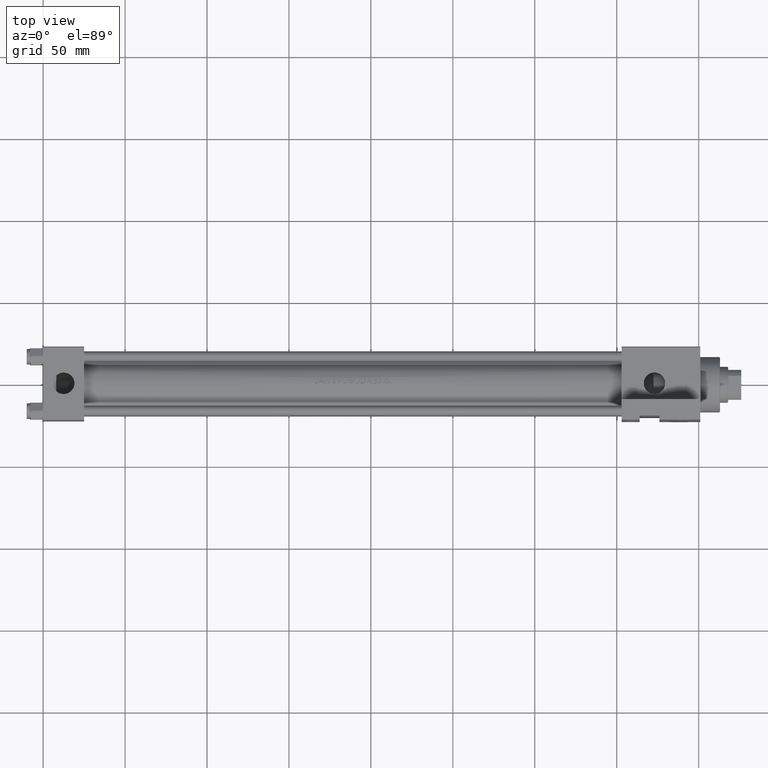
[diagram: clean part render]
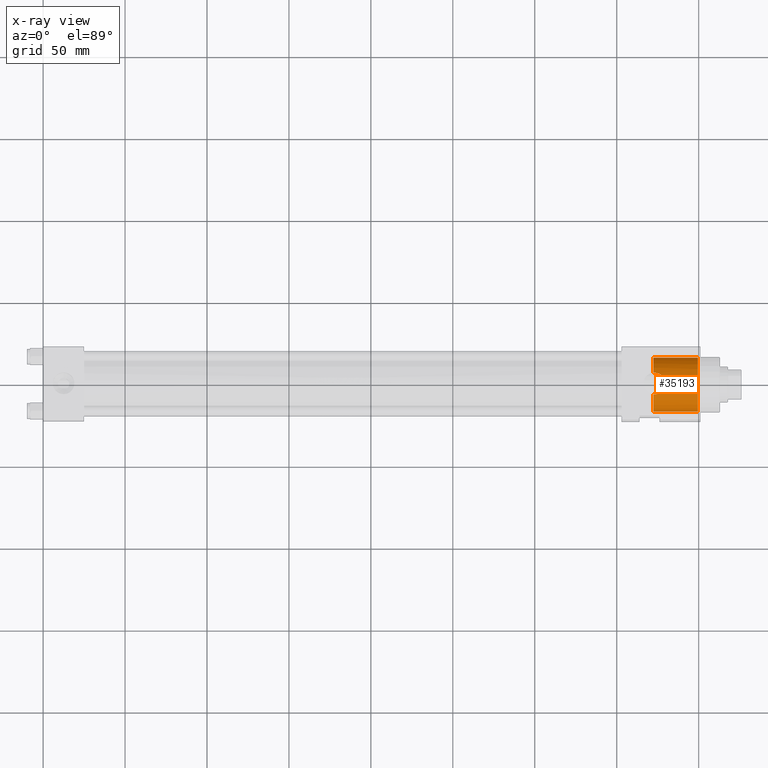
[diagram: x-ray — body ghosted, one internal face saturated and labeled with its STEP entity id]
A machine part, top view, then the same camera in x-ray: the body is ghosted and one INTERNAL B-rep face — a face not visible from any outside direction — is saturated and labeled: STEP entity #35193.
In plain terms, the highlighted cylindrical surface (edge-blend (fillet) strip) has radius 16.5 mm, axis along (1, 0, 0).
Its self-contained STEP definition (entity closure, byte-faithful):
#821 = VERTEX_POINT ( 'NONE', #12670 ) ;
#1004 = CARTESIAN_POINT ( 'NONE',  ( 377.3574914770862279, -15.89197804239858947, -4.948973207531823348 ) ) ;
#1238 = CARTESIAN_POINT ( 'NONE',  ( 379.5709677562896331, -16.50116693238018328, -0.4077177105366009413 ) ) ;
#1376 = ORIENTED_EDGE ( 'NONE', *, *, #14802, .F. ) ;
#1467 = CARTESIAN_POINT ( 'NONE',  ( 375.1384851323426801, -15.47127985552786811, -6.237636073092440725 ) ) ;
#1951 = CARTESIAN_POINT ( 'NONE',  ( 377.3341328556404619, -15.57266778701109189, 4.955512184649332852 ) ) ;
#2435 = CARTESIAN_POINT ( 'NONE',  ( 377.4913386763624317, -15.62185234982736226, 4.813414449261110839 ) ) ;
#2674 = CARTESIAN_POINT ( 'NONE',  ( 379.2284342886651416, -16.28834046731282825, 2.164775913349327841 ) ) ;
#3129 = EDGE_LOOP ( 'NONE', ( #37384, #36863, #31861, #12740, #1376, #19704, #32775, #3499 ) ) ;
#3450 = LINE ( 'NONE', #46906, #6925 ) ;
#3499 = ORIENTED_EDGE ( 'NONE', *, *, #4245, .T. ) ;
#3583 = EDGE_CURVE ( 'NONE', #30348, #8002, #22183, .T. ) ;
#3588 = VERTEX_POINT ( 'NONE', #38869 ) ;
#4245 = EDGE_CURVE ( 'NONE', #821, #8002, #21356, .T. ) ;
#4383 = CARTESIAN_POINT ( 'NONE',  ( 373.8656063113635355, -15.35602623177227777, -6.537463815344770168 ) ) ;
#4618 = CARTESIAN_POINT ( 'NONE',  ( 378.7127167590448380, -16.26592437390081614, -3.293073257702346712 ) ) ;
#4776 = EDGE_CURVE ( 'NONE', #44229, #821, #12711, .T. ) ;
#4847 = DIRECTION ( 'NONE',  ( 0.000000000000000000, 0.000000000000000000, -1.000000000000000000 ) ) ;
#5093 = CARTESIAN_POINT ( 'NONE',  ( 379.5778417032764764, -16.47736198929498386, 0.4683372378626164401 ) ) ;
#5328 = CARTESIAN_POINT ( 'NONE',  ( 376.3079685215799941, -15.66216623791877716, -5.692129803036766411 ) ) ;
#6364 = DIRECTION ( 'NONE',  ( 1.000000000000000000, -0.000000000000000000, -0.000000000000000000 ) ) ;
#6493 = B_SPLINE_CURVE_WITH_KNOTS ( 'NONE', 3,
 ( #39730, #18223, #46965, #6887 ),
 .UNSPECIFIED., .F., .F.,
 ( 4, 4 ),
 ( 0.000000000000000000, 0.0006965685122027478289 ),
 .UNSPECIFIED. ) ;
#6887 = CARTESIAN_POINT ( 'NONE',  ( 373.0000000000000568, -15.33895693976615071, -6.579999999999984972 ) ) ;
#6925 = VECTOR ( 'NONE', #6364, 1000.000000000000000 ) ;
#8002 = VERTEX_POINT ( 'NONE', #14274 ) ;
#8834 = CARTESIAN_POINT ( 'NONE',  ( 372.7674089415833691, -14.90381159301204761, 6.579999999999984972 ) ) ;
#8990 = LINE ( 'NONE', #12611, #19278 ) ;
#9200 = DIRECTION ( 'NONE',  ( 0.000000000000000000, 0.000000000000000000, 1.000000000000000000 ) ) ;
#9919 = CARTESIAN_POINT ( 'NONE',  ( 378.2113291612782859, -15.86733303061777356, 4.040163306179455738 ) ) ;
#10157 = CARTESIAN_POINT ( 'NONE',  ( 378.6923054650132485, -16.05392064770339289, 3.328442527785250515 ) ) ;
#10316 = CIRCLE ( 'NONE', #40352, 16.50000000000000000 ) ;
#11591 = EDGE_CURVE ( 'NONE', #46511, #44229, #6493, .T. ) ;
#11874 = CARTESIAN_POINT ( 'NONE',  ( 379.1646761068264482, -16.40157007731482963, -2.310968459578441880 ) ) ;
#12611 = CARTESIAN_POINT ( 'NONE',  ( 372.3000000000000114, 0.000000000000000000, -16.99999999999999645 ) ) ;
#12670 = CARTESIAN_POINT ( 'NONE',  ( 373.0000000000000568, -14.90381159301204939, 6.579999999999992077 ) ) ;
#12711 = B_SPLINE_CURVE_WITH_KNOTS ( 'NONE', 3,
 ( #37698, #15727, #4383, #30222, #1467, #15486, #45630, #5328, #37938, #31173, #1004, #22728, #41076, #33849, #26837, #4618, #38174, #11874, #19577, #26607, #41309, #19342, #23446, #1238, #30697, #5093, #46830, #28263, #2674, #45865, #10157, #9919, #23914, #2435, #1951, #31895, #31412, #42495, #17389, #28028, #46590, #39120, #24156, #13772 ),
 .UNSPECIFIED., .F., .F.,
 ( 4, 2, 2, 2, 2, 2, 2, 2, 2, 2, 2, 2, 2, 2, 2, 2, 2, 2, 2, 2, 2, 4 ),
 ( 0.0006965685122027478289, 0.001996785190668206970, 0.003297001869133666004, 0.003947110208366471848, 0.004597218547599277692, 0.005897435226064888514, 0.006547543565297690889, 0.007197651904530492396, 0.008497868582996188219, 0.009147976922229036564, 0.009798085261461884909, 0.01044819360069473325, 0.01109830193992758160, 0.01239851861839328002, 0.01369873529685897498, 0.01499895197532467341, 0.01629916865379036836, 0.01694927699302315946, 0.01759938533225594709, 0.01889960201072153276, 0.02019981868918711149, 0.02150003536765269369 ),
 .UNSPECIFIED. ) ;
#12740 = ORIENTED_EDGE ( 'NONE', *, *, #22101, .F. ) ;
#12945 = CARTESIAN_POINT ( 'NONE',  ( 373.0000000000000568, -15.33895693976615071, -6.579999999999984972 ) ) ;
#13772 = CARTESIAN_POINT ( 'NONE',  ( 373.0000000000000568, -14.90381159301204939, 6.579999999999992077 ) ) ;
#14274 = CARTESIAN_POINT ( 'NONE',  ( 372.3000000000000114, -14.92149255237201189, 6.542660009506819918 ) ) ;
#14644 = DIRECTION ( 'NONE',  ( 0.000000000000000000, 0.000000000000000000, -1.000000000000000000 ) ) ;
#14767 = CIRCLE ( 'NONE', #31757, 16.50000000000000000 ) ;
#14802 = EDGE_CURVE ( 'NONE', #46511, #39486, #14767, .T. ) ;
#15486 = CARTESIAN_POINT ( 'NONE',  ( 375.7335635805853826, -15.56042039305879854, -5.989176551187647135 ) ) ;
#15727 = CARTESIAN_POINT ( 'NONE',  ( 373.4341129154130385, -15.33895693976615249, -6.579999999999984084 ) ) ;
#17389 = CARTESIAN_POINT ( 'NONE',  ( 375.9258909046373560, -15.20539478107088271, 5.909229121773023508 ) ) ;
#17470 = EDGE_CURVE ( 'NONE', #24955, #3588, #10316, .T. ) ;
#18223 = CARTESIAN_POINT ( 'NONE',  ( 372.5341069302494930, -15.34384745132401839, -6.567707138799266708 ) ) ;
#19278 = VECTOR ( 'NONE', #24196, 1000.000000000000000 ) ;
#19342 = CARTESIAN_POINT ( 'NONE',  ( 379.4983281949435536, -16.49200114892362379, -1.055870233478325204 ) ) ;
#19577 = CARTESIAN_POINT ( 'NONE',  ( 379.2380364384483755, -16.42309107580809524, -2.104813929365229708 ) ) ;
#19693 = CARTESIAN_POINT ( 'NONE',  ( 372.5326410810857283, -14.90974480628698196, 6.567550307416747835 ) ) ;
#19704 = ORIENTED_EDGE ( 'NONE', *, *, #11591, .T. ) ;
#21356 = B_SPLINE_CURVE_WITH_KNOTS ( 'NONE', 3,
 ( #26953, #8834, #19693, #23552 ),
 .UNSPECIFIED., .F., .F.,
 ( 4, 4 ),
 ( 0.02150003536765269369, 0.02219197285507958084 ),
 .UNSPECIFIED. ) ;
#22101 = EDGE_CURVE ( 'NONE', #39486, #3588, #8990, .T. ) ;
#22183 = CIRCLE ( 'NONE', #29166, 16.50000000000000000 ) ;
#22728 = CARTESIAN_POINT ( 'NONE',  ( 377.8113393517017471, -16.01015148505542740, -4.493698987271225853 ) ) ;
#23341 = CARTESIAN_POINT ( 'NONE',  ( 372.3000000000000114, -15.35370509061272415, -6.542660009506818142 ) ) ;
#23446 = CARTESIAN_POINT ( 'NONE',  ( 379.5296148987570746, -16.49789263875700129, -0.8414156283381248880 ) ) ;
#23552 = CARTESIAN_POINT ( 'NONE',  ( 372.3000000000000114, -14.92149255237201189, 6.542660009506819918 ) ) ;
#23914 = CARTESIAN_POINT ( 'NONE',  ( 377.9408583155630481, -15.76925504840587244, 4.366124845913799568 ) ) ;
#24156 = CARTESIAN_POINT ( 'NONE',  ( 373.4370608312320883, -14.90381159301205294, 6.579999999999992966 ) ) ;
#24196 = DIRECTION ( 'NONE',  ( 1.000000000000000000, -0.000000000000000000, -0.000000000000000000 ) ) ;
#24955 = VERTEX_POINT ( 'NONE', #38529 ) ;
#25259 = DIRECTION ( 'NONE',  ( 0.000000000000000000, 0.000000000000000000, -1.000000000000000000 ) ) ;
#26047 = EDGE_CURVE ( 'NONE', #30348, #24955, #3450, .T. ) ;
#26607 = CARTESIAN_POINT ( 'NONE',  ( 379.3629836567160964, -16.45835575231208381, -1.689905106513905020 ) ) ;
#26837 = CARTESIAN_POINT ( 'NONE',  ( 378.3567953874912178, -16.16208858154858774, -3.827128066706335208 ) ) ;
#26953 = CARTESIAN_POINT ( 'NONE',  ( 373.0000000000000568, -14.90381159301204939, 6.579999999999992077 ) ) ;
#27778 = CARTESIAN_POINT ( 'NONE',  ( 372.3000000000000114, 0.000000000000000000, -0.4999999999999967804 ) ) ;
#28028 = CARTESIAN_POINT ( 'NONE',  ( 375.1352023701870735, -15.06229937542716790, 6.238648670809845420 ) ) ;
#28263 = CARTESIAN_POINT ( 'NONE',  ( 379.3588356637530410, -16.35197207035328759, 1.746060943800902265 ) ) ;
#29166 = AXIS2_PLACEMENT_3D ( 'NONE', #27778, #42484, #4847 ) ;
#30222 = CARTESIAN_POINT ( 'NONE',  ( 374.7232862870478129, -15.42257739805874728, -6.365374442724276882 ) ) ;
#30348 = VERTEX_POINT ( 'NONE', #31323 ) ;
#30697 = CARTESIAN_POINT ( 'NONE',  ( 379.5809669525391428, -16.49848120805964058, -0.1871076695943675872 ) ) ;
#31173 = CARTESIAN_POINT ( 'NONE',  ( 377.0284776740527377, -15.81237954518120681, -5.220358165594013222 ) ) ;
#31323 = CARTESIAN_POINT ( 'NONE',  ( 372.3000000000000114, 2.020667218593133100E-15, 16.00000000000000355 ) ) ;
#31412 = CARTESIAN_POINT ( 'NONE',  ( 376.8315046802826487, -15.42728545299678800, 5.353628400115717056 ) ) ;
#31757 = AXIS2_PLACEMENT_3D ( 'NONE', #39026, #35417, #25259 ) ;
#31861 = ORIENTED_EDGE ( 'NONE', *, *, #17470, .T. ) ;
#31895 = CARTESIAN_POINT ( 'NONE',  ( 377.0044194477453061, -15.47541940897810875, 5.225555808626266341 ) ) ;
#32775 = ORIENTED_EDGE ( 'NONE', *, *, #4776, .T. ) ;
#33015 = CYLINDRICAL_SURFACE ( 'NONE', #45720, 16.50000000000000000 ) ;
#33849 = CARTESIAN_POINT ( 'NONE',  ( 378.2294062955910476, -16.12552788553619010, -3.999511881281994086 ) ) ;
#35193 = ADVANCED_FACE ( 'NONE', ( #36634 ), #33015, .F. ) ;
#35417 = DIRECTION ( 'NONE',  ( 1.000000000000000000, 0.000000000000000000, 0.000000000000000000 ) ) ;
#36634 = FACE_OUTER_BOUND ( 'NONE', #3129, .T. ) ;
#36863 = ORIENTED_EDGE ( 'NONE', *, *, #26047, .T. ) ;
#37384 = ORIENTED_EDGE ( 'NONE', *, *, #3583, .F. ) ;
#37698 = CARTESIAN_POINT ( 'NONE',  ( 373.0000000000000568, -15.33895693976615071, -6.579999999999984972 ) ) ;
#37938 = CARTESIAN_POINT ( 'NONE',  ( 376.4940309364366726, -15.69908748261051734, -5.579806515649023524 ) ) ;
#38174 = CARTESIAN_POINT ( 'NONE',  ( 378.9152909999797885, -16.32739268020747403, -2.914679961596269298 ) ) ;
#38529 = CARTESIAN_POINT ( 'NONE',  ( 399.5000000000000000, 2.020667218593133100E-15, 16.00000000000000355 ) ) ;
#38869 = CARTESIAN_POINT ( 'NONE',  ( 399.5000000000000000, 0.000000000000000000, -16.99999999999999645 ) ) ;
#39026 = CARTESIAN_POINT ( 'NONE',  ( 372.3000000000000114, 0.000000000000000000, -0.4999999999999967804 ) ) ;
#39120 = CARTESIAN_POINT ( 'NONE',  ( 373.8672262143392118, -14.92450725701554859, 6.536889544069371283 ) ) ;
#39486 = VERTEX_POINT ( 'NONE', #45763 ) ;
#39730 = CARTESIAN_POINT ( 'NONE',  ( 372.3000000000000114, -15.35370509061272415, -6.542660009506818142 ) ) ;
#40352 = AXIS2_PLACEMENT_3D ( 'NONE', #42745, #46357, #9200 ) ;
#40706 = CARTESIAN_POINT ( 'NONE',  ( 372.3000000000000114, 0.000000000000000000, -0.4999999999999967804 ) ) ;
#41076 = CARTESIAN_POINT ( 'NONE',  ( 377.9566738476336241, -16.04954766180734183, -4.332917015252664150 ) ) ;
#41309 = CARTESIAN_POINT ( 'NONE',  ( 379.4150129121088639, -16.47223324460452432, -1.480115068709078052 ) ) ;
#42484 = DIRECTION ( 'NONE',  ( 1.000000000000000000, 0.000000000000000000, 0.000000000000000000 ) ) ;
#42495 = CARTESIAN_POINT ( 'NONE',  ( 376.3001356602297847, -15.28950433861737501, 5.708499388656715468 ) ) ;
#42745 = CARTESIAN_POINT ( 'NONE',  ( 399.5000000000000000, 0.000000000000000000, -0.4999999999999967804 ) ) ;
#44229 = VERTEX_POINT ( 'NONE', #12945 ) ;
#45630 = CARTESIAN_POINT ( 'NONE',  ( 375.9277837456257885, -15.59286003707434531, -5.896700753237607451 ) ) ;
#45720 = AXIS2_PLACEMENT_3D ( 'NONE', #40706, #47705, #14644 ) ;
#45763 = CARTESIAN_POINT ( 'NONE',  ( 372.3000000000000114, 0.000000000000000000, -16.99999999999999645 ) ) ;
#45865 = CARTESIAN_POINT ( 'NONE',  ( 378.8954531384125062, -16.13952493269047750, 2.953520058509849999 ) ) ;
#46357 = DIRECTION ( 'NONE',  ( 1.000000000000000000, 0.000000000000000000, 0.000000000000000000 ) ) ;
#46511 = VERTEX_POINT ( 'NONE', #23341 ) ;
#46590 = CARTESIAN_POINT ( 'NONE',  ( 374.7143978928019123, -15.00324899027946124, 6.367404972463830859 ) ) ;
#46830 = CARTESIAN_POINT ( 'NONE',  ( 379.5326949847450919, -16.44614851479039075, 0.8985633279690309339 ) ) ;
#46906 = CARTESIAN_POINT ( 'NONE',  ( 372.3000000000000114, 2.020667218593133100E-15, 16.00000000000000355 ) ) ;
#46965 = CARTESIAN_POINT ( 'NONE',  ( 372.7674315422764835, -15.33895693976615071, -6.579999999999984972 ) ) ;
#47705 = DIRECTION ( 'NONE',  ( 1.000000000000000000, -0.000000000000000000, -0.000000000000000000 ) ) ;